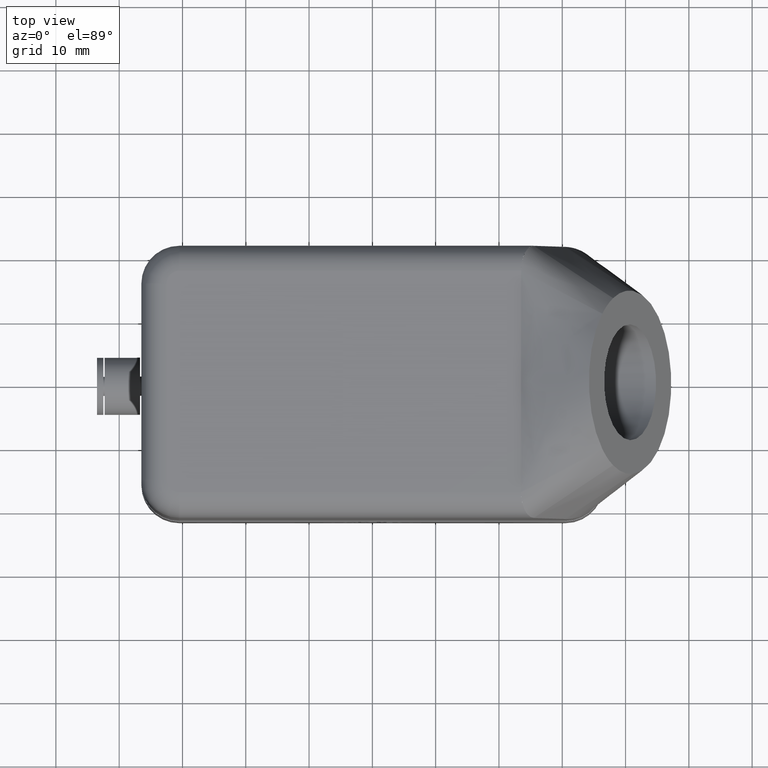
[diagram: clean part render]
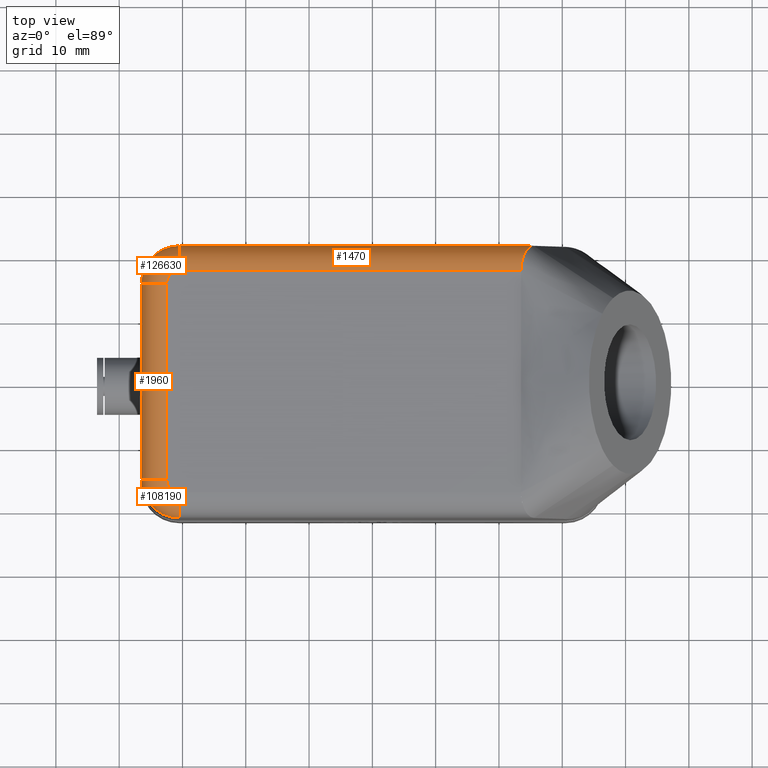
[diagram: same view with one multi-face feature highlighted, each face labeled with its STEP entity id]
A machine part, top view. The highlighted faces form ONE feature: a constant-radius fillet chain: 4 tangent blend faces with common blend radius 4 mm. The faces share edges in the B-rep.
Their STEP definitions:
[1] entity #1470 (Cylinder):
#990=CARTESIAN_POINT('',(25.5103990688052,17.5,48.));
#1000=DIRECTION('',(-1.,0.,0.));
#1010=DIRECTION('',(0.,1.,0.));
#1020=AXIS2_PLACEMENT_3D('',#990,#1000,#1010);
#1030=CYLINDRICAL_SURFACE('',#1020,4.00000000000004);
#1040=CARTESIAN_POINT('',(23.5008862247181,17.4971240617954,52.));
#1050=CARTESIAN_POINT('',(23.4994024483727,19.1556626872923,
52.0011915622001));
#1060=CARTESIAN_POINT('',(24.0875272629732,20.3284271247462,
50.8284271247462));
#1070=(BOUNDED_CURVE() B_SPLINE_CURVE(2,(#1040,#1050,#1060),
.UNSPECIFIED.,.F.,.F.) B_SPLINE_CURVE_WITH_KNOTS((3,3),(0.,1.),
.UNSPECIFIED.) CURVE() GEOMETRIC_REPRESENTATION_ITEM() 
RATIONAL_B_SPLINE_CURVE((1.00014317540983,0.923808012004893,1.)) 
REPRESENTATION_ITEM(''));
#1080=CARTESIAN_POINT('',(23.5008862247181,17.4971240617954,52.));
#1090=VERTEX_POINT('',#1080);
#1100=CARTESIAN_POINT('',(24.0875272629732,20.3284271247462,
50.8284271247462));
#1110=VERTEX_POINT('',#1100);
#1120=EDGE_CURVE('',#1090,#1110,#1070,.T.);
#1130=ORIENTED_EDGE('',*,*,#1120,.T.);
#1140=CARTESIAN_POINT('',(-30.5,17.5,52.));
#1150=DIRECTION('',(0.999999998581833,-5.3257240790316E-5,0.));
#1160=VECTOR('',#1150,1.);
#1170=LINE('',#1140,#1160);
#1180=CARTESIAN_POINT('',(-30.5,17.5,52.));
#1190=VERTEX_POINT('',#1180);
#1200=EDGE_CURVE('',#1190,#1090,#1170,.T.);
#1210=ORIENTED_EDGE('',*,*,#1200,.T.);
#1220=CARTESIAN_POINT('',(-30.5,17.5,48.));
#1230=DIRECTION('',(-1.,0.,0.));
#1240=DIRECTION('',(0.,1.,0.));
#1250=AXIS2_PLACEMENT_3D('',#1220,#1230,#1240);
#1260=CIRCLE('',#1250,4.00000000000002);
#1270=CARTESIAN_POINT('',(-30.5,21.5,48.));
#1280=VERTEX_POINT('',#1270);
#1290=EDGE_CURVE('',#1190,#1280,#1260,.T.);
#1300=ORIENTED_EDGE('',*,*,#1290,.F.);
#1310=CARTESIAN_POINT('',(25.5064145789252,21.4978224957286,
47.9990607324556));
#1320=DIRECTION('',(-0.999999999103562,3.88795513118426E-5,
1.67707136881674E-5));
#1330=VECTOR('',#1320,1.);
#1340=LINE('',#1310,#1330);
#1350=CARTESIAN_POINT('',(25.5064145789252,21.4978224957286,
47.9990607324556));
#1360=VERTEX_POINT('',#1350);
#1370=EDGE_CURVE('',#1360,#1280,#1340,.T.);
#1380=ORIENTED_EDGE('',*,*,#1370,.T.);
#1390=CARTESIAN_POINT('',(24.0875282705893,20.3284291340058,
50.8284251154851));
#1400=CARTESIAN_POINT('',(24.6752505619376,21.5003892452065,
49.6564633392074));
#1410=CARTESIAN_POINT('',(25.5064145789252,21.4978224957286,
47.9990607324556));
#1420=(BOUNDED_CURVE() B_SPLINE_CURVE(2,(#1390,#1400,#1410),
.UNSPECIFIED.,.F.,.F.) B_SPLINE_CURVE_WITH_KNOTS((3,3),(0.,1.),
.UNSPECIFIED.) CURVE() GEOMETRIC_REPRESENTATION_ITEM() 
RATIONAL_B_SPLINE_CURVE((1.,0.923834712284039,1.)) REPRESENTATION_ITEM(
''));
#1430=EDGE_CURVE('',#1110,#1360,#1420,.T.);
#1440=ORIENTED_EDGE('',*,*,#1430,.T.);
#1450=EDGE_LOOP('',(#1440,#1380,#1300,#1210,#1130));
#1460=FACE_OUTER_BOUND('',#1450,.T.);
#1470=ADVANCED_FACE('',(#1460),#1030,.T.);
[2] entity #126630 (Torus):
#1180=CARTESIAN_POINT('',(-30.5,17.5,52.));
#1190=VERTEX_POINT('',#1180);
#1220=CARTESIAN_POINT('',(-30.5,17.5,48.));
#1230=DIRECTION('',(-1.,0.,0.));
#1240=DIRECTION('',(0.,1.,0.));
#1250=AXIS2_PLACEMENT_3D('',#1220,#1230,#1240);
#1260=CIRCLE('',#1250,4.00000000000002);
#1270=CARTESIAN_POINT('',(-30.5,21.5,48.));
#1280=VERTEX_POINT('',#1270);
#1290=EDGE_CURVE('',#1190,#1280,#1260,.T.);
#1640=CARTESIAN_POINT('',(-36.5,15.5,48.));
#1650=VERTEX_POINT('',#1640);
#1700=CARTESIAN_POINT('',(-32.5,15.5,48.0000000000001));
#1710=DIRECTION('',(0.,-1.,0.));
#1720=DIRECTION('',(-1.,-0.,0.));
#1730=AXIS2_PLACEMENT_3D('',#1700,#1710,#1720);
#1740=CIRCLE('',#1730,3.99999999999995);
#1750=CARTESIAN_POINT('',(-32.5,15.5,52.));
#1760=VERTEX_POINT('',#1750);
#1770=EDGE_CURVE('',#1760,#1650,#1740,.T.);
#17270=CARTESIAN_POINT('',(-30.5,15.5,48.0000000000001));
#17280=DIRECTION('',(0.,0.,1.));
#17290=DIRECTION('',(1.,0.,-0.));
#17300=AXIS2_PLACEMENT_3D('',#17270,#17280,#17290);
#17310=CIRCLE('',#17300,6.00000000000001);
#17320=EDGE_CURVE('',#1280,#1650,#17310,.T.);
#126460=CARTESIAN_POINT('',(-30.5,15.5,47.9999999999999));
#126470=DIRECTION('',(0.,0.,1.));
#126480=DIRECTION('',(0.0531380914988382,0.998587173576679,0.));
#126490=AXIS2_PLACEMENT_3D('',#126460,#126470,#126480);
#126500=DEGENERATE_TOROIDAL_SURFACE('',#126490,1.9999999999999,
4.00000000000009,.T.);
#126510=CARTESIAN_POINT('',(-30.5,15.5,52.));
#126520=DIRECTION('',(0.,0.,-1.));
#126530=DIRECTION('',(-1.,0.,-0.));
#126540=AXIS2_PLACEMENT_3D('',#126510,#126520,#126530);
#126550=CIRCLE('',#126540,2.00000000000001);
#126560=EDGE_CURVE('',#1760,#1190,#126550,.T.);
#126570=ORIENTED_EDGE('',*,*,#126560,.T.);
#126580=ORIENTED_EDGE('',*,*,#1770,.F.);
#126590=ORIENTED_EDGE('',*,*,#17320,.T.);
#126600=ORIENTED_EDGE('',*,*,#1290,.T.);
#126610=EDGE_LOOP('',(#126600,#126590,#126580,#126570));
#126620=FACE_OUTER_BOUND('',#126610,.T.);
#126630=ADVANCED_FACE('',(#126620),#126500,.T.);
[3] entity #1960 (Cylinder):
#1550=CARTESIAN_POINT('',(-32.5,-15.5,48.));
#1560=DIRECTION('',(0.,1.,0.));
#1570=DIRECTION('',(1.,-0.,0.));
#1580=AXIS2_PLACEMENT_3D('',#1550,#1560,#1570);
#1590=CYLINDRICAL_SURFACE('',#1580,3.99999999999998);
#1600=CARTESIAN_POINT('',(-36.5,15.5,48.));
#1610=DIRECTION('',(0.,-1.,0.));
#1620=VECTOR('',#1610,1.);
#1630=LINE('',#1600,#1620);
#1640=CARTESIAN_POINT('',(-36.5,15.5,48.));
#1650=VERTEX_POINT('',#1640);
#1660=CARTESIAN_POINT('',(-36.5,-15.5,48.));
#1670=VERTEX_POINT('',#1660);
#1680=EDGE_CURVE('',#1650,#1670,#1630,.T.);
#1690=ORIENTED_EDGE('',*,*,#1680,.T.);
#1700=CARTESIAN_POINT('',(-32.5,15.5,48.0000000000001));
#1710=DIRECTION('',(0.,-1.,0.));
#1720=DIRECTION('',(-1.,-0.,0.));
#1730=AXIS2_PLACEMENT_3D('',#1700,#1710,#1720);
#1740=CIRCLE('',#1730,3.99999999999995);
#1750=CARTESIAN_POINT('',(-32.5,15.5,52.));
#1760=VERTEX_POINT('',#1750);
#1770=EDGE_CURVE('',#1760,#1650,#1740,.T.);
#1780=ORIENTED_EDGE('',*,*,#1770,.T.);
#1790=CARTESIAN_POINT('',(-32.5,-15.5,52.));
#1800=DIRECTION('',(0.,1.,0.));
#1810=VECTOR('',#1800,1.);
#1820=LINE('',#1790,#1810);
#1830=CARTESIAN_POINT('',(-32.5,-15.5,52.));
#1840=VERTEX_POINT('',#1830);
#1850=EDGE_CURVE('',#1840,#1760,#1820,.T.);
#1860=ORIENTED_EDGE('',*,*,#1850,.T.);
#1870=CARTESIAN_POINT('',(-32.5,-15.5,48.));
#1880=DIRECTION('',(0.,-1.,0.));
#1890=DIRECTION('',(-1.,-0.,0.));
#1900=AXIS2_PLACEMENT_3D('',#1870,#1880,#1890);
#1910=CIRCLE('',#1900,4.00000000000004);
#1920=EDGE_CURVE('',#1840,#1670,#1910,.T.);
#1930=ORIENTED_EDGE('',*,*,#1920,.F.);
#1940=EDGE_LOOP('',(#1930,#1860,#1780,#1690));
#1950=FACE_OUTER_BOUND('',#1940,.T.);
#1960=ADVANCED_FACE('',(#1950),#1590,.T.);
[4] entity #108190 (Torus):
#1660=CARTESIAN_POINT('',(-36.5,-15.5,48.));
#1670=VERTEX_POINT('',#1660);
#1830=CARTESIAN_POINT('',(-32.5,-15.5,52.));
#1840=VERTEX_POINT('',#1830);
#1870=CARTESIAN_POINT('',(-32.5,-15.5,48.));
#1880=DIRECTION('',(0.,-1.,0.));
#1890=DIRECTION('',(-1.,-0.,0.));
#1900=AXIS2_PLACEMENT_3D('',#1870,#1880,#1890);
#1910=CIRCLE('',#1900,4.00000000000004);
#1920=EDGE_CURVE('',#1840,#1670,#1910,.T.);
#2150=CARTESIAN_POINT('',(-30.5,-17.5,52.));
#2160=VERTEX_POINT('',#2150);
#2390=CARTESIAN_POINT('',(-30.5,-21.5,48.));
#2400=VERTEX_POINT('',#2390);
#2430=CARTESIAN_POINT('',(-30.5,-17.5,48.));
#2440=DIRECTION('',(1.,0.,0.));
#2450=DIRECTION('',(0.,-1.,0.));
#2460=AXIS2_PLACEMENT_3D('',#2430,#2440,#2450);
#2470=CIRCLE('',#2460,4.00000000000005);
#2480=EDGE_CURVE('',#2160,#2400,#2470,.T.);
#35280=CARTESIAN_POINT('',(-30.5,-15.5000000000001,48.));
#35290=DIRECTION('',(0.,0.,1.));
#35300=DIRECTION('',(1.,0.,-0.));
#35310=AXIS2_PLACEMENT_3D('',#35280,#35290,#35300);
#35320=CIRCLE('',#35310,5.99999999999994);
#35330=EDGE_CURVE('',#1670,#2400,#35320,.T.);
#108020=CARTESIAN_POINT('',(-30.5,-15.5,47.9999999999999));
#108030=DIRECTION('',(0.,0.,1.));
#108040=DIRECTION('',(-0.998752042457515,0.0499435449977473,0.));
#108050=AXIS2_PLACEMENT_3D('',#108020,#108030,#108040);
#108060=DEGENERATE_TOROIDAL_SURFACE('',#108050,1.99999999999993,
4.00000000000007,.T.);
#108070=CARTESIAN_POINT('',(-30.5,-15.5,52.));
#108080=DIRECTION('',(0.,0.,-1.));
#108090=DIRECTION('',(-1.,0.,-0.));
#108100=AXIS2_PLACEMENT_3D('',#108070,#108080,#108090);
#108110=CIRCLE('',#108100,2.);
#108120=EDGE_CURVE('',#2160,#1840,#108110,.T.);
#108130=ORIENTED_EDGE('',*,*,#108120,.T.);
#108140=ORIENTED_EDGE('',*,*,#2480,.F.);
#108150=ORIENTED_EDGE('',*,*,#35330,.T.);
#108160=ORIENTED_EDGE('',*,*,#1920,.T.);
#108170=EDGE_LOOP('',(#108160,#108150,#108140,#108130));
#108180=FACE_OUTER_BOUND('',#108170,.T.);
#108190=ADVANCED_FACE('',(#108180),#108060,.T.);